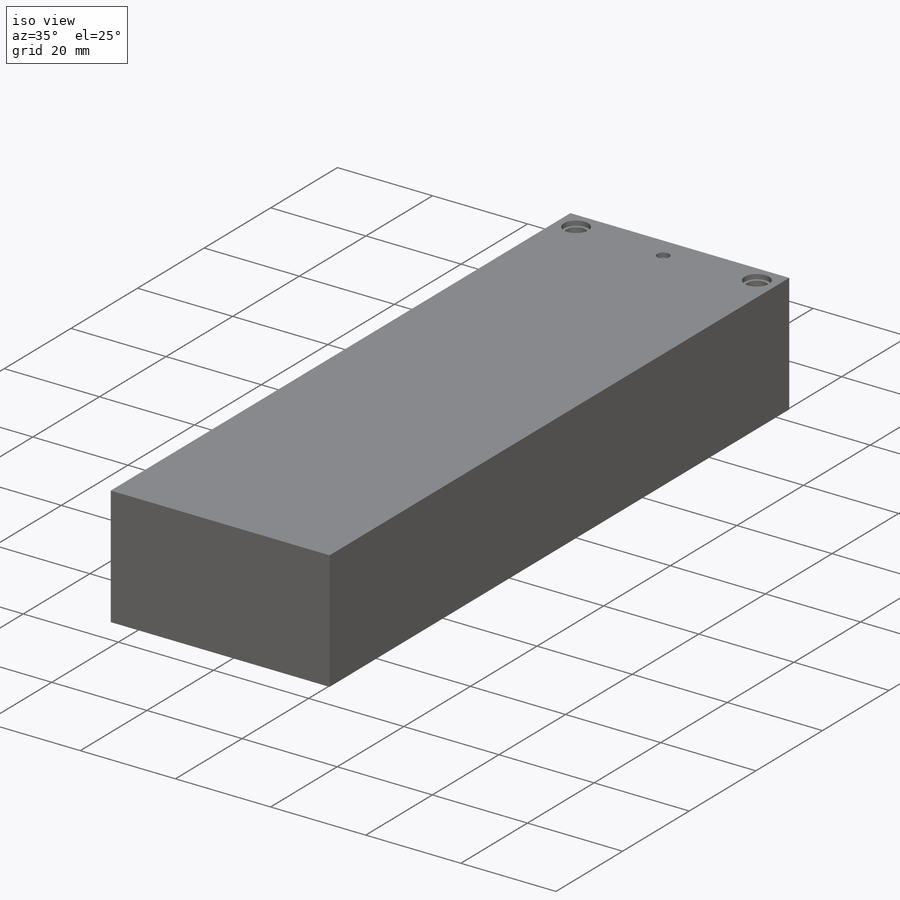
[diagram: iso view]
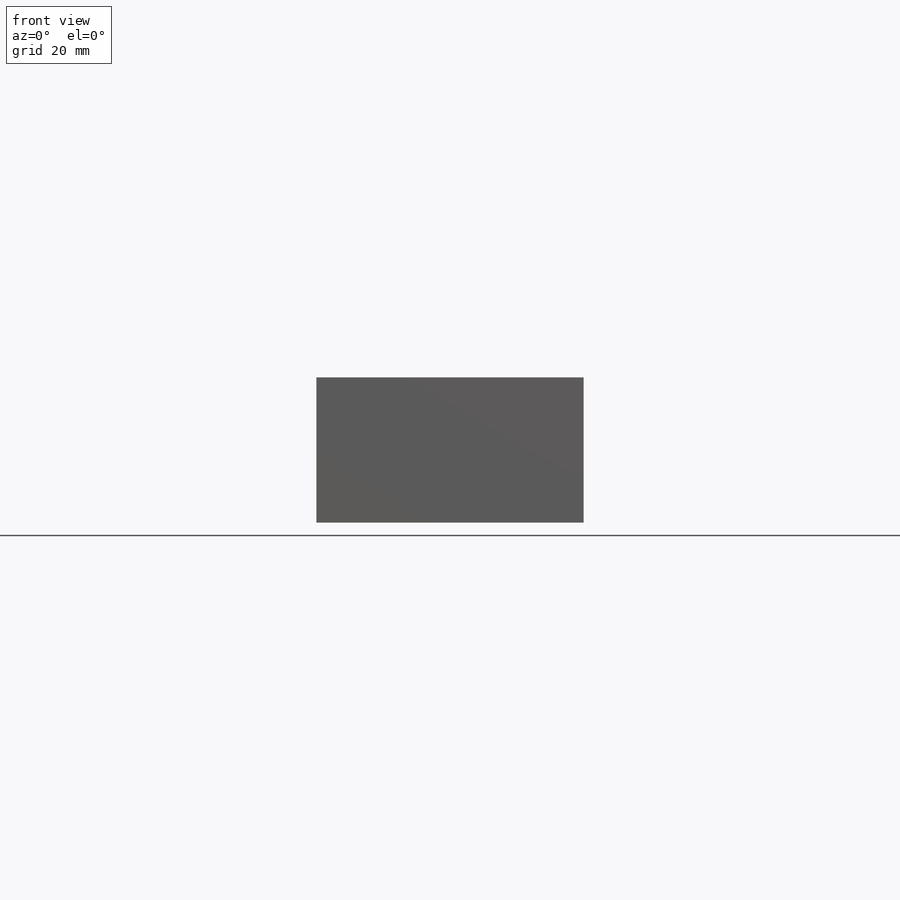
[diagram: front view]
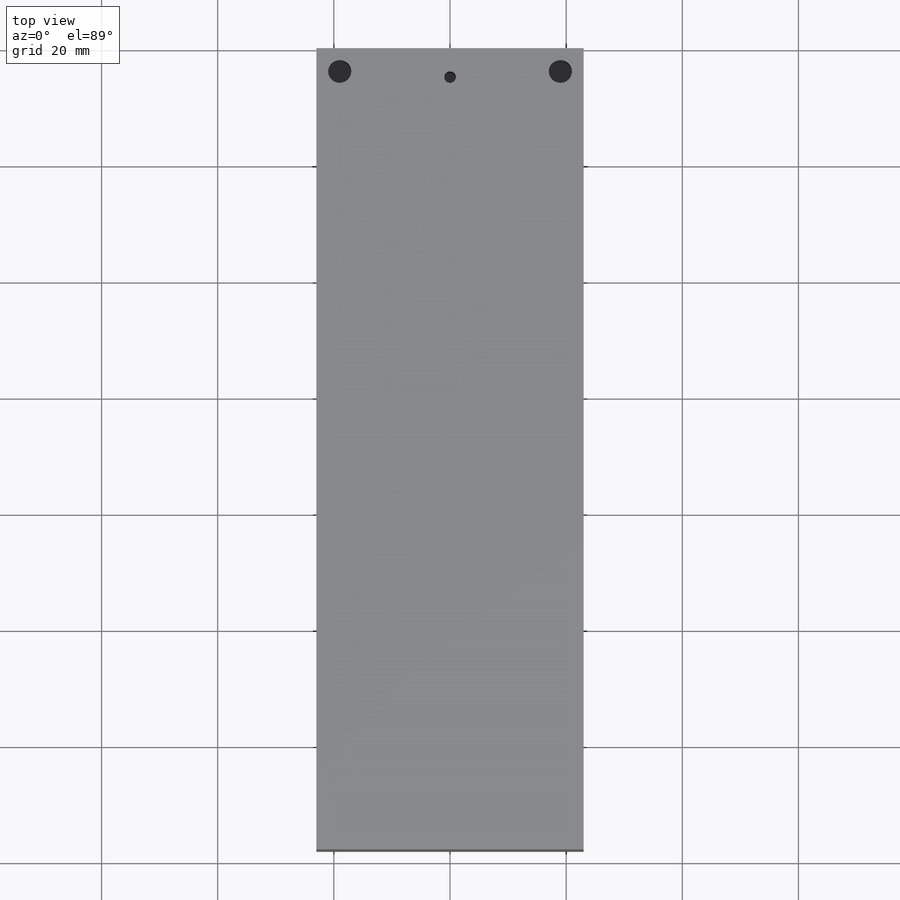
[diagram: top view]
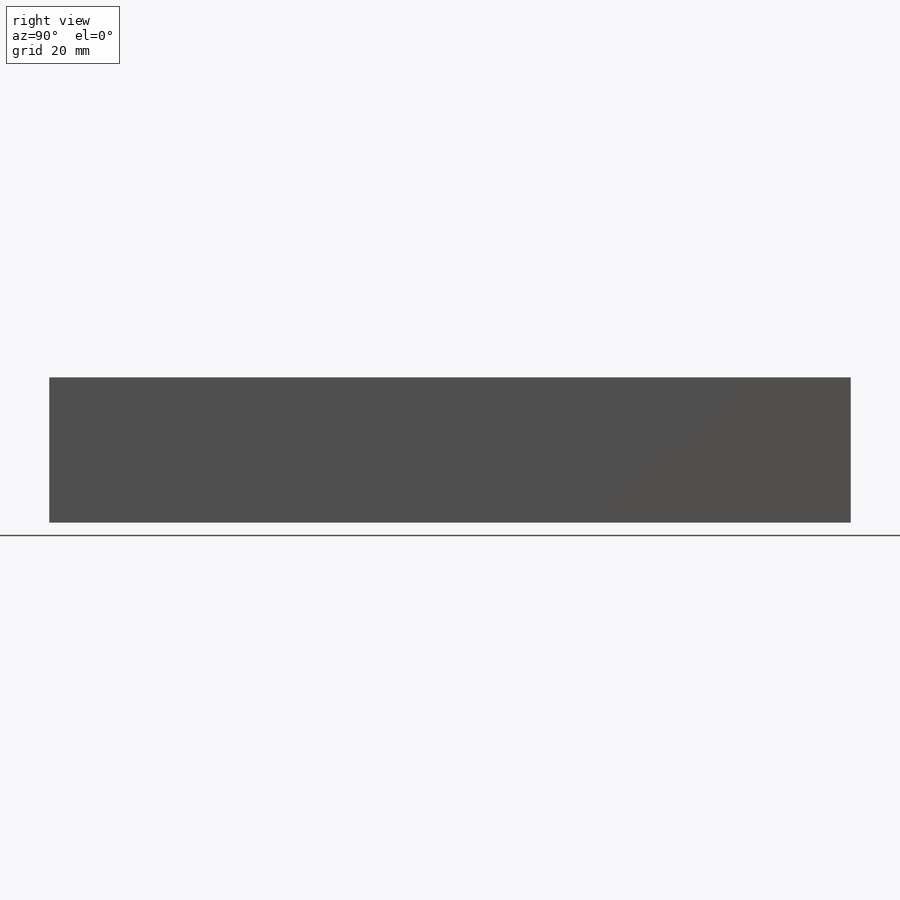
[diagram: right view]
SOLIDWORKS PART (.sldprt)
format: sldprt  version: not decoded by parser v0  size: 152,064 bytes
history: native  units: mm
features: sketch x3, cut_extrude x2, material x1, extrude x1 (+11 scaffold rows collapsed)
feature tree (18):
  scaffold x11  (default folders/planes/origin — collapsed)
  material  "Material <not specified>"
  sketch  "Sketch2"  dims[D1=25.0mm D2=46.0mm]
  extrude  "Boss-Extrude1"  Depth=138mm
  sketch  "Sketch3"  dims[D1=5.15mm D2=2.5mm D3=4.0mm D4=4.0mm D5=5.0mm D6=4.0mm D7=4.0mm]
  cut_extrude  "Cut-Extrude1"  Depth=1mm
  sketch  "Sketch4"  dims[D1=4.0mm D2=2.0mm D3=4.0mm]
  cut_extrude  "Cut-Extrude2"  Depth=16.5mm
decode coverage: 6 of 6 modeling features carry decoded parameters
note: suppression state not decoded; provenance and decode notes live in map.json
